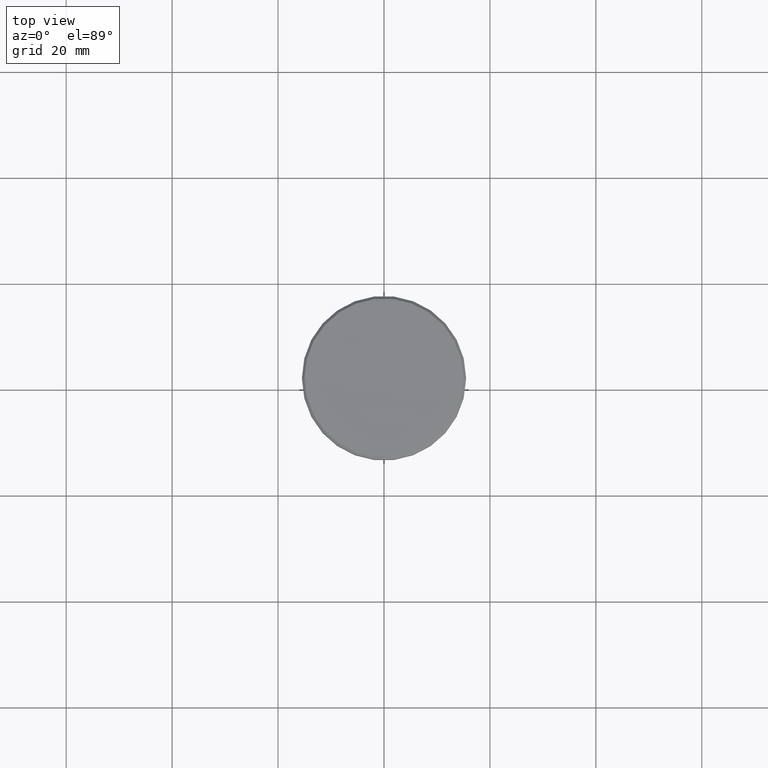
[diagram: clean part render]
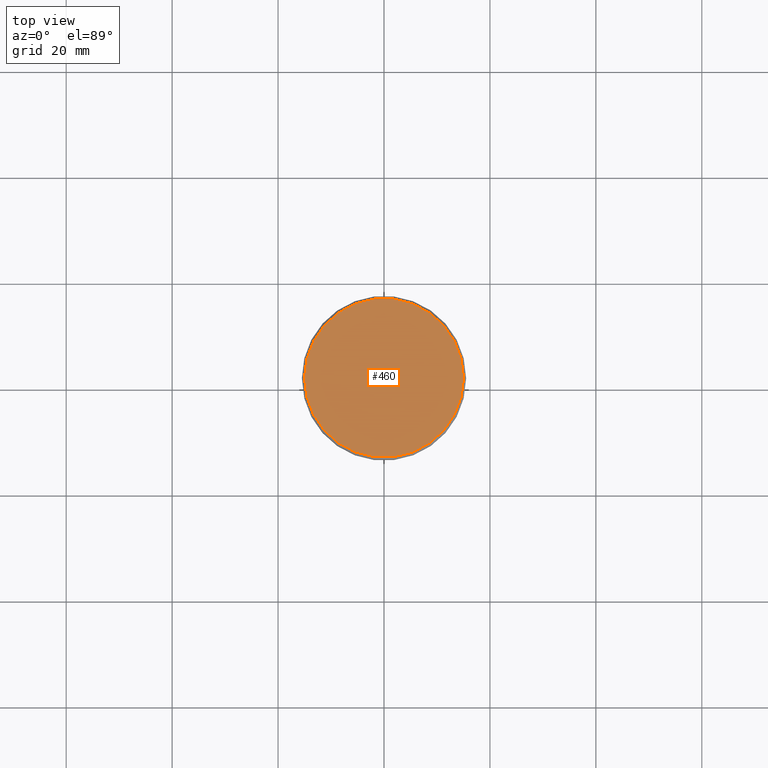
[diagram: same view with one face highlighted and labeled with its STEP entity id]
A machine part, top view. The second image highlights one B-rep face of the part: STEP entity #460.
In plain terms, the highlighted planar face has unit normal (0, -0, 1).
Its self-contained STEP definition (entity closure, byte-faithful):
#7 = AXIS2_PLACEMENT_3D ( 'NONE', #991, #167, #176 ) ;
#85 = CARTESIAN_POINT ( 'NONE',  ( 0.000000000000000000, 0.000000000000000000, 0.000000000000000000 ) ) ;
#87 = CARTESIAN_POINT ( 'NONE',  ( 0.000000000000000000, 0.000000000000000000, 0.000000000000000000 ) ) ;
#140 = EDGE_CURVE ( 'NONE', #742, #727, #778, .T. ) ;
#153 = CARTESIAN_POINT ( 'NONE',  ( -15.00000000000002665, 0.000000000000000000, 0.000000000000000000 ) ) ;
#167 = DIRECTION ( 'NONE',  ( -0.000000000000000000, -0.000000000000000000, 1.000000000000000000 ) ) ;
#176 = DIRECTION ( 'NONE',  ( 1.000000000000000000, 0.000000000000000000, 0.000000000000000000 ) ) ;
#241 = CIRCLE ( 'NONE', #7, 15.00000000000002665 ) ;
#256 = AXIS2_PLACEMENT_3D ( 'NONE', #87, #1078, #468 ) ;
#376 = ORIENTED_EDGE ( 'NONE', *, *, #377, .T. ) ;
#377 = EDGE_CURVE ( 'NONE', #727, #742, #241, .T. ) ;
#449 = EDGE_LOOP ( 'NONE', ( #1175, #376 ) ) ;
#460 = ADVANCED_FACE ( 'NONE', ( #562 ), #640, .T. ) ;
#468 = DIRECTION ( 'NONE',  ( 1.000000000000000000, 0.000000000000000000, 0.000000000000000000 ) ) ;
#562 = FACE_OUTER_BOUND ( 'NONE', #449, .T. ) ;
#640 = PLANE ( 'NONE',  #905 ) ;
#727 = VERTEX_POINT ( 'NONE', #964 ) ;
#742 = VERTEX_POINT ( 'NONE', #153 ) ;
#743 = DIRECTION ( 'NONE',  ( 1.000000000000000000, 0.000000000000000000, 0.000000000000000000 ) ) ;
#778 = CIRCLE ( 'NONE', #256, 15.00000000000002665 ) ;
#905 = AXIS2_PLACEMENT_3D ( 'NONE', #85, #1098, #743 ) ;
#964 = CARTESIAN_POINT ( 'NONE',  ( 15.00000000000002665, 1.867586368699715348E-15, 0.000000000000000000 ) ) ;
#991 = CARTESIAN_POINT ( 'NONE',  ( 0.000000000000000000, 0.000000000000000000, 0.000000000000000000 ) ) ;
#1078 = DIRECTION ( 'NONE',  ( -0.000000000000000000, -0.000000000000000000, 1.000000000000000000 ) ) ;
#1098 = DIRECTION ( 'NONE',  ( 0.000000000000000000, -0.000000000000000000, 1.000000000000000000 ) ) ;
#1175 = ORIENTED_EDGE ( 'NONE', *, *, #140, .T. ) ;